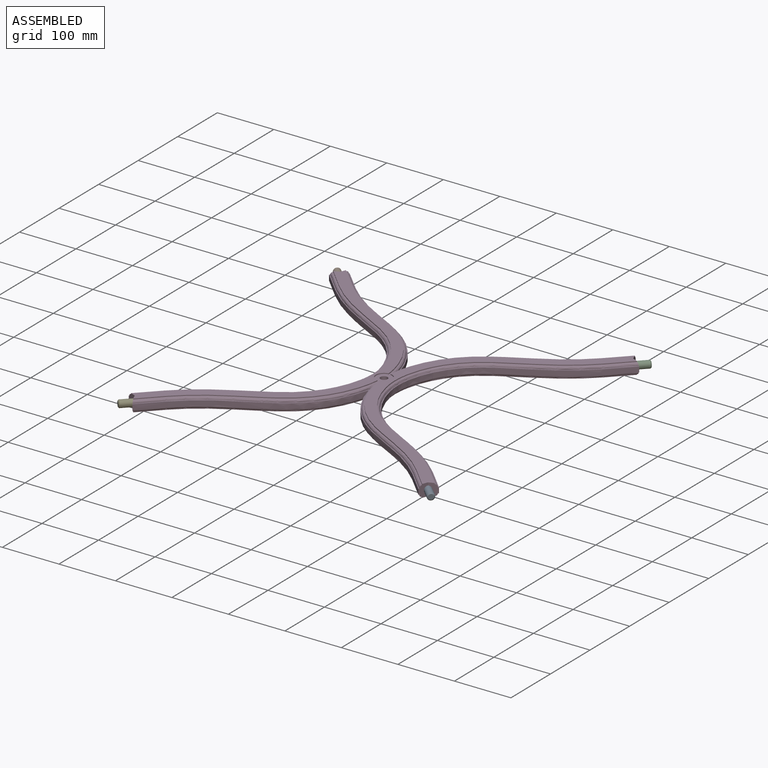
[diagram: assembled view]
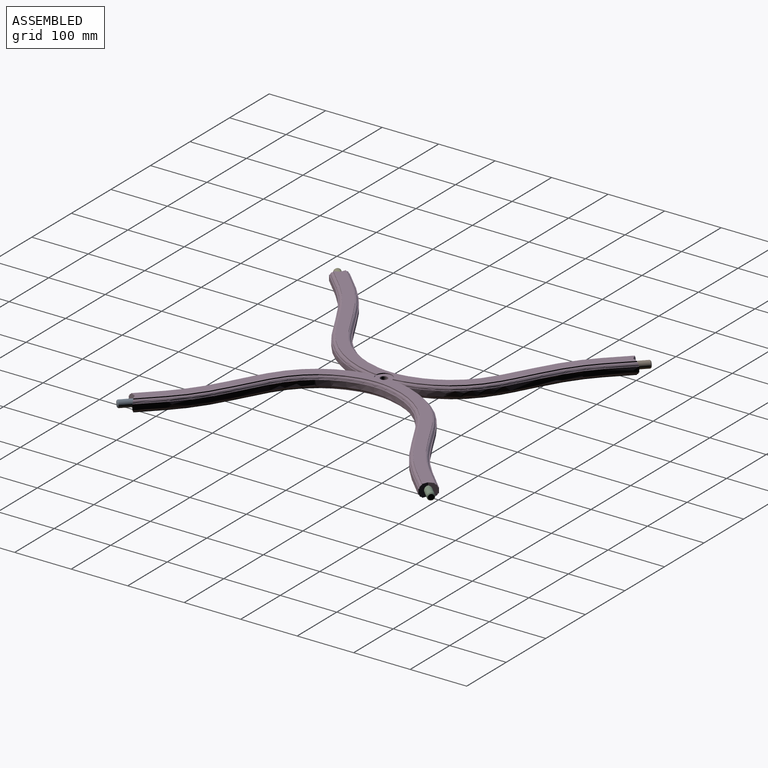
[diagram: assembled view, second angle]
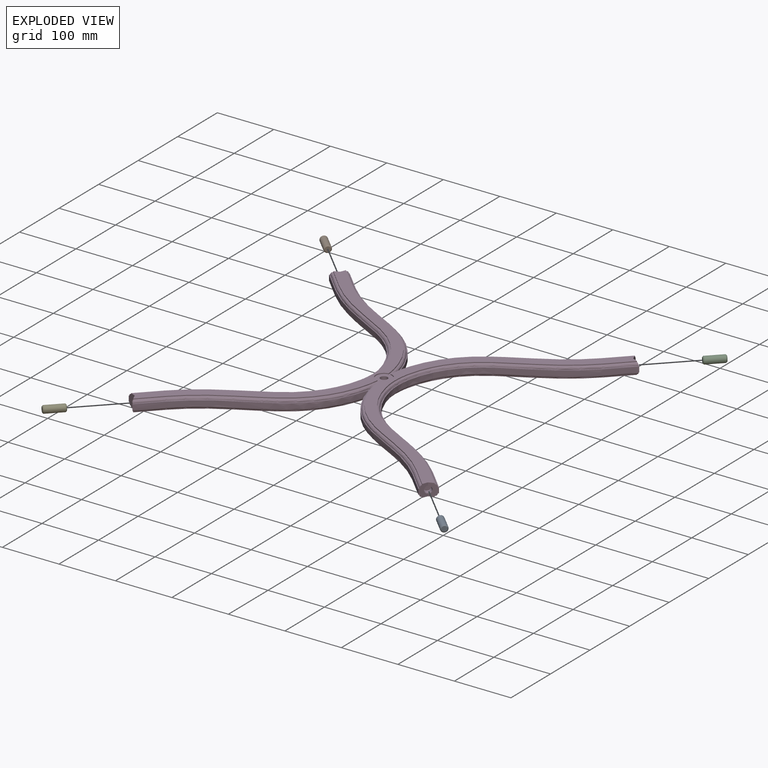
[diagram: exploded view]
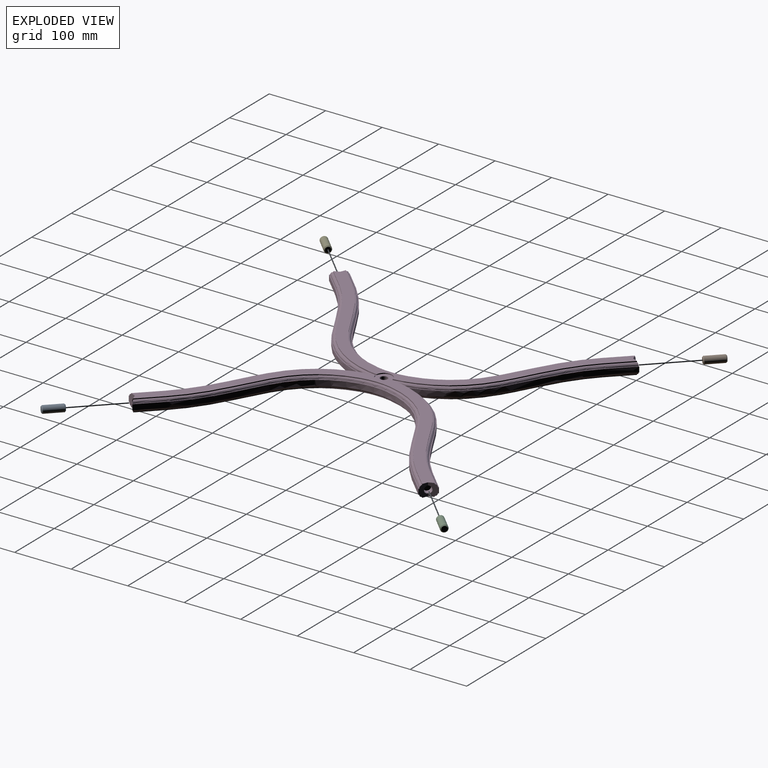
[diagram: exploded view, second angle]
ASSEMBLY  parts=5 mates=4
PART A: 5 faces, bbox 36x12.7x12.7 mm
  f0: cylinder r=6.35mm len=32.83mm, axis (-1,0,0), area 1309.8mm2, adj f3,f4
  f1: plane 9.53x9.53mm, normal (1,0,0), area 71.3mm2, adj f4
  f2: plane 9.53x9.53mm, normal (-1,0,0), area 71.3mm2, adj f3
  f3: cone r=6.35mm half-angle=45deg, axis (1,0,0), area 78.4mm2, adj f0,f2
  f4: cone r=4.76mm half-angle=45deg, axis (-1,0,0), area 78.4mm2, adj f0,f1
PART B: same geometry as A
PART C: same geometry as A
PART D: 75 faces, bbox 554.5x554.5x27.5 mm
  f0: bspline ~267.27x258.93mm, area 2658mm2, adj f2,f3,f12,f17,f74
  f1: bspline ~273.31x259.13mm, area 2660.1mm2, adj f4,f7,f17,f25,f26,f68,f74
  f2: bspline ~271.06x254.86mm, area 592.3mm2, adj f0,f15,f17,f70,f72,f74
  f3: bspline ~267.27x258.93mm, area 2658mm2, adj f0,f5,f12,f31,f74
  f4: bspline ~273.31x259.13mm, area 2660.1mm2, adj f1,f10,f26,f31,f39,f69,f74
  f5: bspline ~271.06x254.86mm, area 592.3mm2, adj f3,f29,f31,f71,f73,f74
  f6: bspline ~275.46x259.18mm, area 2658mm2, adj f8,f9,f44,f47,f74
  f7: bspline ~273.31x259.13mm, area 2660.1mm2, adj f1,f10,f47,f53,f54,f68,f74
  f8: bspline ~271.06x254.86mm, area 592.3mm2, adj f6,f15,f47,f70,f72,f74
  f9: bspline ~275.46x259.18mm, area 2658mm2, adj f6,f11,f44,f57,f74
  f10: bspline ~273.31x259.13mm, area 2660.1mm2, adj f4,f7,f54,f57,f63,f69,f74
  f11: bspline ~271.06x254.86mm, area 592.3mm2, adj f9,f29,f57,f71,f73,f74
  f12: plane 512.54x247.29mm, normal (0,0,1), area 525mm2, adj f0,f3,f13,f17,f27,f31
  f13: extruded ~253.15x235.56mm, area 3379.8mm2, adj f12,f17,f26,f27
  f14: extruded ~253.15x249.3mm, area 3528mm2, adj f18,f21,f23,f46
  f15: plane 537.54x267.37mm, normal (0,0,1), area 13805.7mm2, adj f2,f8,f17,f18,f22,f47,f48,f51
  f16: plane 537.54x268.05mm, normal (0,0,-1), area 14095.9mm2, adj f17,f18,f19,f25,f47,f48,f49,f53
  f17: plane 27.49x20.45mm, normal (-0.92,0.38,0), area 251.9mm2, adj f0,f1,f2,f12,f13,f15,f16,f18
  f18: plane 23.33x16.3mm, normal (-0.38,0.92,0), area 251.9mm2, adj f14,f15,f16,f17,f19,f20,f21,f22
  f19: bspline ~258.16x249.72mm, area 591.5mm2, adj f16,f18,f20,f49
  f20: bspline ~258.16x254.12mm, area 2661.4mm2, adj f18,f19,f21,f50
  f21: plane 508.91x252.17mm, normal (0,0,-1), area 939.8mm2, adj f14,f18,f20,f46,f48,f50
  f22: bspline ~258.16x249.72mm, area 591.5mm2, adj f15,f18,f24,f51
  f23: plane 508.38x251.65mm, normal (0,0,1), area 1013.9mm2, adj f14,f18,f24,f46,f48,f52
  f24: bspline ~258.16x254.12mm, area 2661.4mm2, adj f18,f22,f23,f52
  f25: bspline ~271.06x254.86mm, area 614.7mm2, adj f1,f16,f17,f53
  f26: plane 509.55x244.29mm, normal (0,0,-1), area 1594.4mm2, adj f1,f4,f13,f17,f27,f31
  f27: extruded ~253.15x235.56mm, area 3379.8mm2, adj f12,f13,f26,f31
  f28: extruded ~253.15x249.3mm, area 3528mm2, adj f32,f35,f37,f56
  f29: plane 537.54x267.37mm, normal (0,0,1), area 13805.7mm2, adj f5,f11,f31,f32,f36,f57,f58,f61
  f30: plane 537.54x268.05mm, normal (0,0,-1), area 14095.9mm2, adj f31,f32,f33,f39,f57,f58,f59,f63
  f31: plane 23.33x16.3mm, normal (0.92,0.38,0), area 251.9mm2, adj f3,f4,f5,f12,f26,f27,f29,f30
  f32: plane 27.49x20.45mm, normal (0.38,0.92,0), area 251.9mm2, adj f28,f29,f30,f31,f33,f34,f35,f36
  f33: bspline ~258.16x249.72mm, area 591.5mm2, adj f30,f32,f34,f59
  f34: bspline ~258.16x254.12mm, area 2661.4mm2, adj f32,f33,f35,f60
  f35: plane 508.91x252.17mm, normal (0,0,-1), area 939.8mm2, adj f28,f32,f34,f56,f58,f60
  f36: bspline ~258.16x249.72mm, area 591.5mm2, adj f29,f32,f38,f61
  f37: plane 508.38x251.65mm, normal (0,0,1), area 1013.9mm2, adj f28,f32,f38,f56,f58,f62
  f38: bspline ~258.16x254.12mm, area 2661.4mm2, adj f32,f36,f37,f62
  f39: bspline ~271.06x254.86mm, area 614.7mm2, adj f4,f30,f31,f63
  f40: cylinder r=6.35mm len=17.58mm, axis (-0.71,0.71,0), area 406.3mm2, adj f17,f18,f41
  f41: plane 12.7x8.98mm, normal (-0.71,0.71,0), area 126.7mm2, adj f40
  f42: cylinder r=6.35mm len=17.58mm, axis (0.71,0.71,0), area 406.3mm2, adj f31,f32,f43
  f43: plane 12.7x8.98mm, normal (0.71,0.71,0), area 126.7mm2, adj f42
  f44: plane 512.54x247.29mm, normal (0,0,1), area 525mm2, adj f6,f9,f45,f47,f55,f57
  f45: extruded ~253.15x235.56mm, area 3379.8mm2, adj f44,f47,f54,f55
  f46: extruded ~253.15x249.3mm, area 3528mm2, adj f14,f21,f23,f48
  f47: plane 27.49x20.45mm, normal (-0.92,-0.38,0), area 251.9mm2, adj f6,f7,f8,f15,f16,f44,f45,f48
  f48: plane 23.33x16.3mm, normal (-0.38,-0.92,0), area 251.9mm2, adj f15,f16,f21,f23,f46,f47,f49,f50
  f49: bspline ~258.16x249.72mm, area 591.5mm2, adj f16,f19,f48,f50
  f50: bspline ~258.16x254.12mm, area 2661.4mm2, adj f20,f21,f48,f49
  f51: bspline ~258.16x249.72mm, area 591.5mm2, adj f15,f22,f48,f52
  f52: bspline ~258.16x254.12mm, area 2661.4mm2, adj f23,f24,f48,f51
  f53: bspline ~271.06x254.86mm, area 614.7mm2, adj f7,f16,f25,f47
  f54: plane 509.55x244.29mm, normal (0,0,-1), area 1594.4mm2, adj f7,f10,f45,f47,f55,f57
  f55: extruded ~253.15x235.56mm, area 3379.8mm2, adj f44,f45,f54,f57
  f56: extruded ~253.15x249.3mm, area 3528mm2, adj f28,f35,f37,f58
  f57: plane 23.33x16.3mm, normal (0.92,-0.38,0), area 251.9mm2, adj f9,f10,f11,f29,f30,f44,f54,f55
  f58: plane 27.49x20.45mm, normal (0.38,-0.92,0), area 251.9mm2, adj f29,f30,f35,f37,f56,f57,f59,f60
  f59: bspline ~258.16x249.72mm, area 591.5mm2, adj f30,f33,f58,f60
  f60: bspline ~258.16x254.12mm, area 2661.4mm2, adj f34,f35,f58,f59
  f61: bspline ~258.16x249.72mm, area 591.5mm2, adj f29,f36,f58,f62
  f62: bspline ~258.16x254.12mm, area 2661.4mm2, adj f37,f38,f58,f61
  f63: bspline ~271.06x254.86mm, area 614.7mm2, adj f10,f30,f39,f57
  f64: cylinder r=6.35mm len=17.58mm, axis (-0.71,-0.71,0), area 406.3mm2, adj f47,f48,f65
  f65: plane 12.7x8.98mm, normal (-0.71,-0.71,0), area 126.7mm2, adj f64
  f66: cylinder r=6.35mm len=17.58mm, axis (0.71,-0.71,0), area 406.3mm2, adj f57,f58,f67
  f67: plane 12.7x8.98mm, normal (0.71,-0.71,0), area 126.7mm2, adj f66
  f68: plane 12.64x5.84mm, normal (0,0,1), area 56.1mm2, adj f1,f7,f74
  f69: plane 12.64x5.84mm, normal (0,0,1), area 56.1mm2, adj f4,f10,f74
  f70: cylinder r=14.29mm len=28.4mm, axis (0,0,1), area 65.6mm2, adj f2,f8,f15,f72
  f71: cylinder r=14.29mm len=28.4mm, axis (0,0,1), area 65.6mm2, adj f5,f11,f29,f73
  f72: plane 28.41x13.29mm, normal (0,0,1), area 237.3mm2, adj f2,f8,f70,f74
  f73: plane 28.41x13.29mm, normal (0,0,1), area 237.3mm2, adj f5,f11,f71,f74
  f74: cylinder r=6.35mm len=19.05mm, axis (0,0,1), area 759.7mm2, adj f0,f1,f2,f3,f4,f5,f6,f7
PART E: same geometry as A
PLACE A rot(axis=(-0.38,-0.92,0),180deg) t=(138.41,-342.42,20.18)mm
PLACE B rot(axis=(-0.38,-0.92,0),180deg) t=(-392.47,188.46,20.18)mm
PLACE C rot(axis=(0.38,-0.92,0),180deg) t=(138.41,213.92,20.18)mm
PLACE D t=(-139.76,-64.25,9.07)mm
PLACE E rot(axis=(0,0,1),45deg) t=(-416.81,-341.3,20.18)mm
MATE fastened C.f0 <-> D.f42  axis (-0.71,-0.71,0) through (112.95,188.46,20.18)mm
MATE fastened B.f0 <-> D.f40  axis (0.71,-0.71,0) through (-392.47,188.46,20.18)mm
MATE fastened E.f0 <-> D.f64  axis (0.71,0.71,0) through (-392.47,-316.96,20.18)mm
MATE fastened A.f0 <-> D.f66  axis (-0.71,0.71,0) through (112.95,-316.96,20.18)mm
